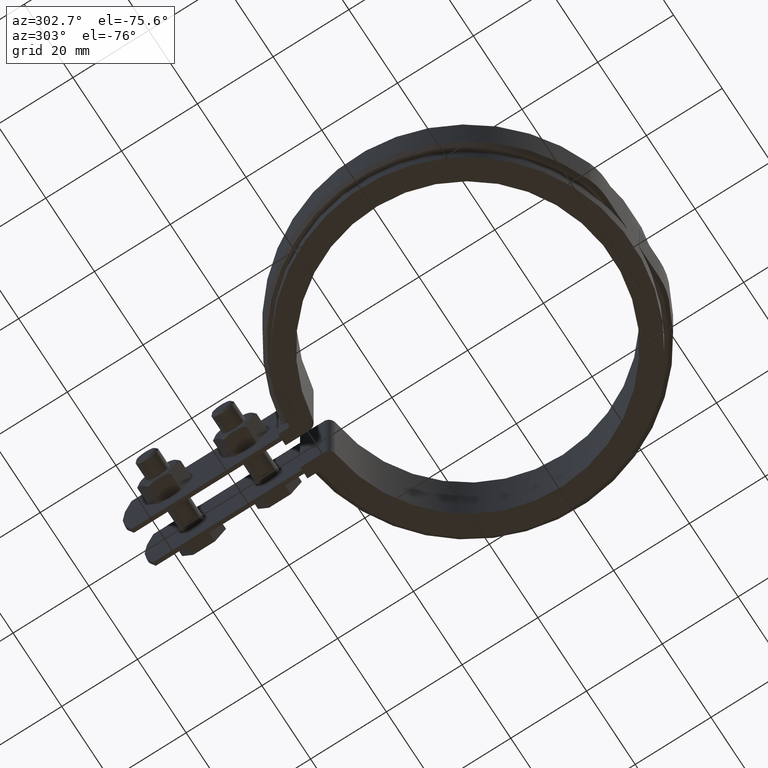
[diagram: clean part render]
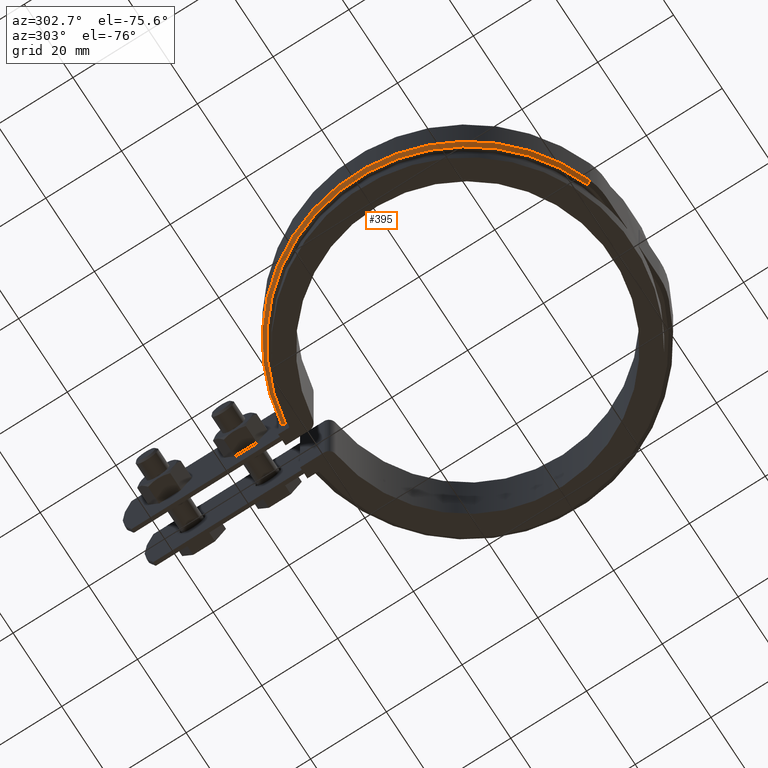
[diagram: same view with one face highlighted and labeled with its STEP entity id]
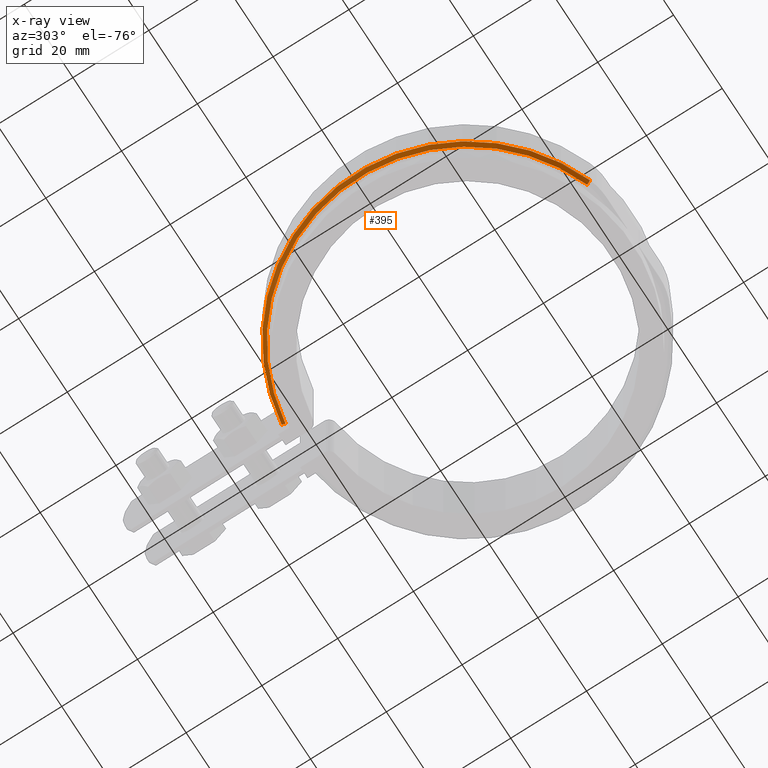
[diagram: x-ray of the same camera — body ghosted, the highlighted face saturated]
A machine part, auxiliary view. The second image highlights one B-rep face of the part: STEP entity #395.
The next image is the same camera in x-ray: the body ghosted, the highlighted face saturated — about 0% of this face is hidden behind the body in this view.
In plain terms, the highlighted conical surface has half-angle 45 deg.
Its self-contained STEP definition (entity closure, byte-faithful):
#395 = ADVANCED_FACE( '', ( #683 ), #684, .T. );
#683 = FACE_OUTER_BOUND( '', #1521, .T. );
#684 = CONICAL_SURFACE( '', #1522, 45.6500000000000, 0.785398163397448 );
#1521 = EDGE_LOOP( '', ( #3015, #3016, #3017, #3018 ) );
#1522 = AXIS2_PLACEMENT_3D( '', #3019, #3020, #3021 );
#3015 = ORIENTED_EDGE( '', *, *, #4217, .F. );
#3016 = ORIENTED_EDGE( '', *, *, #4231, .F. );
#3017 = ORIENTED_EDGE( '', *, *, #4228, .F. );
#3018 = ORIENTED_EDGE( '', *, *, #4232, .F. );
#3019 = CARTESIAN_POINT( '', ( 0.000000000000000, 0.000000000000000, -7.50000000000000 ) );
#3020 = DIRECTION( '', ( 0.000000000000000, 0.000000000000000, 1.00000000000000 ) );
#3021 = DIRECTION( '', ( 1.00000000000000, 0.000000000000000, 0.000000000000000 ) );
#4217 = EDGE_CURVE( '', #4912, #4899, #4914, .T. );
#4228 = EDGE_CURVE( '', #4932, #4933, #4934, .T. );
#4231 = EDGE_CURVE( '', #4933, #4912, #4937, .F. );
#4232 = EDGE_CURVE( '', #4899, #4932, #4938, .T. );
#4899 = VERTEX_POINT( '', #7415 );
#4912 = VERTEX_POINT( '', #7437 );
#4914 = B_SPLINE_CURVE_WITH_KNOTS( '', 3, ( #7440, #7441, #7442, #7443 ), .UNSPECIFIED., .F., .F., ( 4, 4 ), ( 0.000000000000000, 0.00142055609219602 ), .UNSPECIFIED. );
#4932 = VERTEX_POINT( '', #7466 );
#4933 = VERTEX_POINT( '', #7467 );
#4934 = LINE( '', #7468, #7469 );
#4937 = CIRCLE( '', #7472, 44.6500000000000 );
#4938 = CIRCLE( '', #7473, 45.6500000000000 );
#7415 = CARTESIAN_POINT( '', ( -6.00000000000000, 45.2539777257204, -7.50000000000000 ) );
#7437 = CARTESIAN_POINT( '', ( -6.00000000000000, 44.2450279692532, -8.50000000000000 ) );
#7440 = CARTESIAN_POINT( '', ( -6.00000000000000, 44.2450279692532, -8.50000000000000 ) );
#7441 = CARTESIAN_POINT( '', ( -6.00000000000000, 44.5813781116256, -8.16670052728487 ) );
#7442 = CARTESIAN_POINT( '', ( -6.00000000000000, 44.9176939588437, -7.83336644240438 ) );
#7443 = CARTESIAN_POINT( '', ( -6.00000000000000, 45.2539777257204, -7.50000000000000 ) );
#7466 = CARTESIAN_POINT( '', ( -16.2200671388275, -42.6712071778140, -7.50000000000000 ) );
#7467 = CARTESIAN_POINT( '', ( -15.8647535103756, -41.7364600326264, -8.50000000000000 ) );
#7468 = CARTESIAN_POINT( '', ( -16.2200671388275, -42.6712071778140, -7.50000000000000 ) );
#7469 = VECTOR( '', #8429, 1000.00000000000 );
#7472 = AXIS2_PLACEMENT_3D( '', #8436, #8437, #8438 );
#7473 = AXIS2_PLACEMENT_3D( '', #8439, #8440, #8441 );
#8429 = DIRECTION( '', ( 0.251244676126309, 0.660966045056920, -0.707106781186547 ) );
#8436 = CARTESIAN_POINT( '', ( 0.000000000000000, 0.000000000000000, -8.50000000000000 ) );
#8437 = DIRECTION( '', ( 0.000000000000000, 0.000000000000000, 1.00000000000000 ) );
#8438 = DIRECTION( '', ( 1.00000000000000, 0.000000000000000, 0.000000000000000 ) );
#8439 = CARTESIAN_POINT( '', ( 0.000000000000000, 0.000000000000000, -7.50000000000000 ) );
#8440 = DIRECTION( '', ( 0.000000000000000, 0.000000000000000, 1.00000000000000 ) );
#8441 = DIRECTION( '', ( 1.00000000000000, 0.000000000000000, 0.000000000000000 ) );